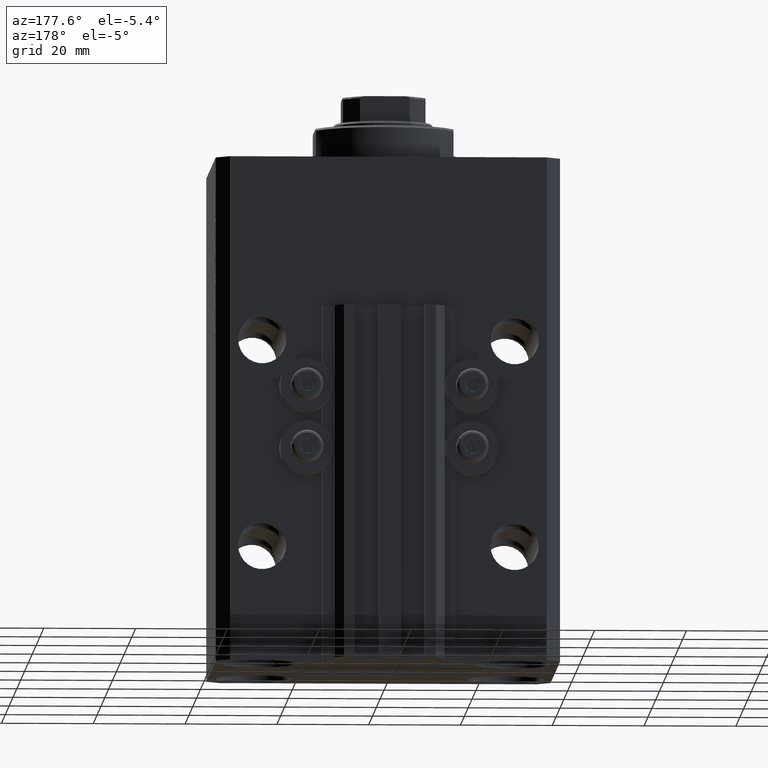
[diagram: clean part render]
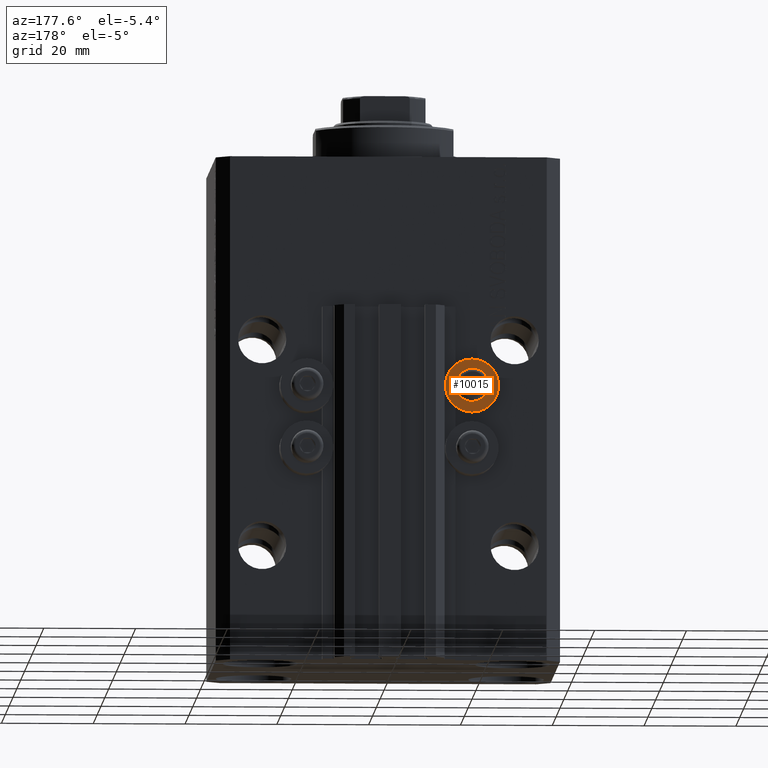
[diagram: same view with one face highlighted and labeled with its STEP entity id]
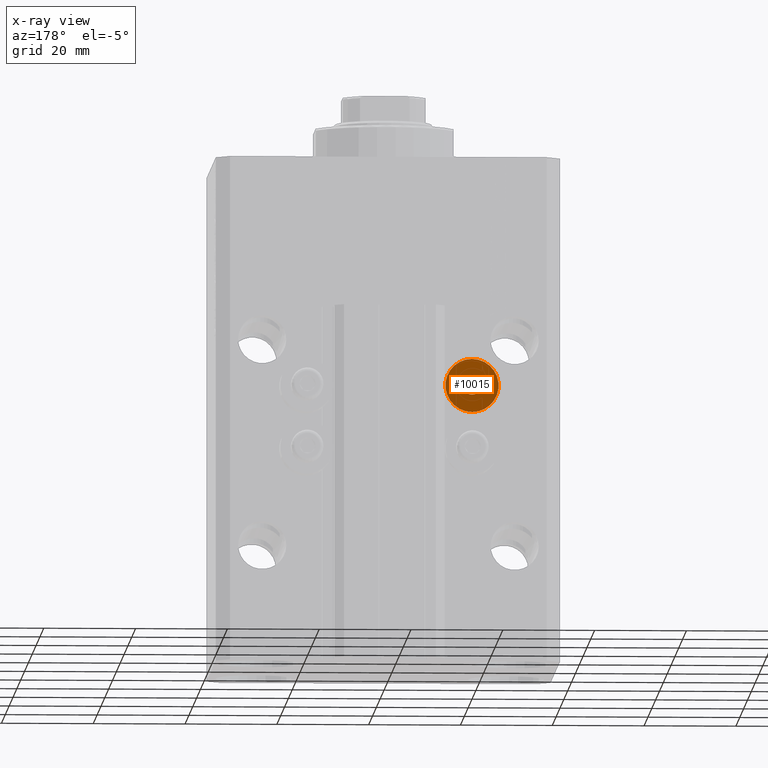
[diagram: x-ray of the same camera — body ghosted, the highlighted face saturated]
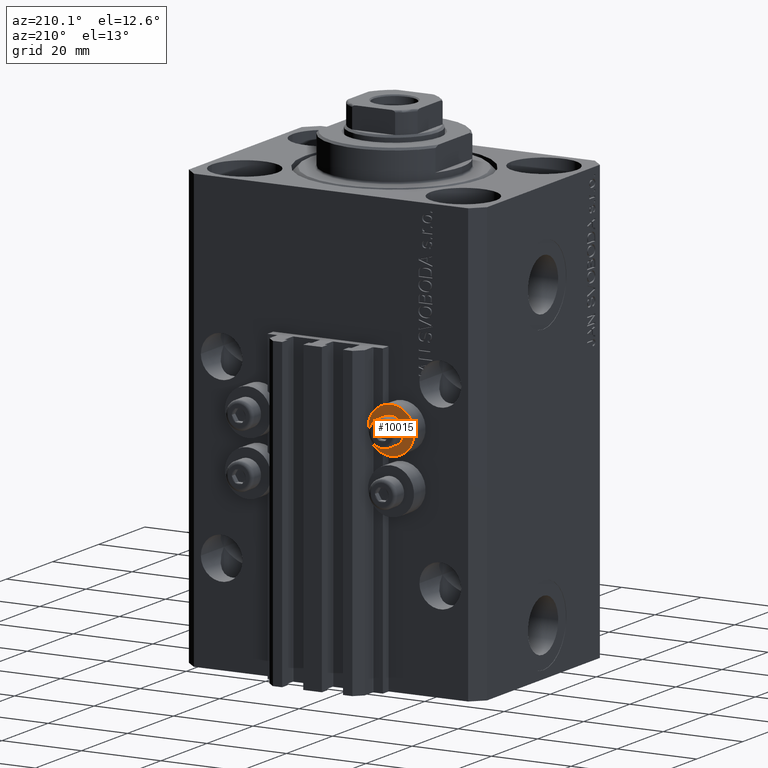
[diagram: same view with one face highlighted and labeled with its STEP entity id]
A machine part, auxiliary view. The second image highlights one B-rep face of the part: STEP entity #10015.
The next image is the same camera in x-ray: the body ghosted, the highlighted face saturated — about 0% of this face is hidden behind the body in this view.
A second angle (auxiliary view) of the same face is appended — the face is thin or edge-on in the first view.
In plain terms, the highlighted planar face has unit normal (0, -1, 0).
Its self-contained STEP definition (entity closure, byte-faithful):
#2131 = EDGE_CURVE ( 'NONE', #45808, #29082, #24730, .T. ) ;
#2223 = CARTESIAN_POINT ( 'NONE',  ( -18.00000000000000355, 32.49999999996100541, -50.39999999999999858 ) ) ;
#2692 = DIRECTION ( 'NONE',  ( 0.000000000000000000, 0.000000000000000000, 1.000000000000000000 ) ) ;
#3157 = ORIENTED_EDGE ( 'NONE', *, *, #20303, .T. ) ;
#4691 = CARTESIAN_POINT ( 'NONE',  ( -18.00000000000000355, 32.49999999996100541, -50.39999999999999858 ) ) ;
#5734 = EDGE_LOOP ( 'NONE', ( #25729, #20622 ) ) ;
#6400 = AXIS2_PLACEMENT_3D ( 'NONE', #35517, #27839, #2692 ) ;
#6897 = EDGE_CURVE ( 'NONE', #29082, #45808, #34826, .T. ) ;
#7647 = CARTESIAN_POINT ( 'NONE',  ( -18.00000000000000355, 32.49999999996100541, -56.20000000000000284 ) ) ;
#8456 = CARTESIAN_POINT ( 'NONE',  ( -18.00000000000000355, 32.49999999996100541, -48.39999999999999858 ) ) ;
#9571 = AXIS2_PLACEMENT_3D ( 'NONE', #4691, #19791, #15712 ) ;
#9861 = CARTESIAN_POINT ( 'NONE',  ( -12.20000000000000284, 32.49999999996100541, -50.39999999999999858 ) ) ;
#10015 = ADVANCED_FACE ( 'NONE', ( #27818, #24475 ), #42435, .F. ) ;
#14415 = DIRECTION ( 'NONE',  ( 0.000000000000000000, 0.000000000000000000, 1.000000000000000000 ) ) ;
#15712 = DIRECTION ( 'NONE',  ( 0.000000000000000000, 0.000000000000000000, 1.000000000000000000 ) ) ;
#17280 = DIRECTION ( 'NONE',  ( 0.000000000000000000, -0.000000000000000000, -1.000000000000000000 ) ) ;
#18594 = AXIS2_PLACEMENT_3D ( 'NONE', #39096, #36446, #14415 ) ;
#18652 = EDGE_LOOP ( 'NONE', ( #19063, #3157 ) ) ;
#19063 = ORIENTED_EDGE ( 'NONE', *, *, #33055, .T. ) ;
#19791 = DIRECTION ( 'NONE',  ( 0.000000000000000000, 1.000000000000000000, 0.000000000000000000 ) ) ;
#20303 = EDGE_CURVE ( 'NONE', #47104, #21034, #33599, .T. ) ;
#20622 = ORIENTED_EDGE ( 'NONE', *, *, #6897, .F. ) ;
#21034 = VERTEX_POINT ( 'NONE', #35054 ) ;
#21372 = AXIS2_PLACEMENT_3D ( 'NONE', #2223, #23780, #38156 ) ;
#23780 = DIRECTION ( 'NONE',  ( -0.000000000000000000, 1.000000000000000000, -0.000000000000000000 ) ) ;
#24475 = FACE_OUTER_BOUND ( 'NONE', #18652, .T. ) ;
#24730 = CIRCLE ( 'NONE', #18594, 2.000000000000001776 ) ;
#25729 = ORIENTED_EDGE ( 'NONE', *, *, #2131, .F. ) ;
#26480 = AXIS2_PLACEMENT_3D ( 'NONE', #9861, #39080, #17280 ) ;
#27818 = FACE_BOUND ( 'NONE', #5734, .T. ) ;
#27839 = DIRECTION ( 'NONE',  ( -0.000000000000000000, 1.000000000000000000, -0.000000000000000000 ) ) ;
#29082 = VERTEX_POINT ( 'NONE', #37995 ) ;
#33055 = EDGE_CURVE ( 'NONE', #21034, #47104, #43115, .T. ) ;
#33599 = CIRCLE ( 'NONE', #21372, 5.799999999999999822 ) ;
#34826 = CIRCLE ( 'NONE', #9571, 2.000000000000001776 ) ;
#35054 = CARTESIAN_POINT ( 'NONE',  ( -18.00000000000000355, 32.49999999996100541, -44.60000000000000142 ) ) ;
#35517 = CARTESIAN_POINT ( 'NONE',  ( -18.00000000000000355, 32.49999999996100541, -50.39999999999999858 ) ) ;
#36446 = DIRECTION ( 'NONE',  ( 0.000000000000000000, 1.000000000000000000, 0.000000000000000000 ) ) ;
#37995 = CARTESIAN_POINT ( 'NONE',  ( -18.00000000000000355, 32.49999999996100541, -52.40000000000000568 ) ) ;
#38156 = DIRECTION ( 'NONE',  ( 0.000000000000000000, 0.000000000000000000, 1.000000000000000000 ) ) ;
#39080 = DIRECTION ( 'NONE',  ( 0.000000000000000000, -1.000000000000000000, 0.000000000000000000 ) ) ;
#39096 = CARTESIAN_POINT ( 'NONE',  ( -18.00000000000000355, 32.49999999996100541, -50.39999999999999858 ) ) ;
#42435 = PLANE ( 'NONE',  #26480 ) ;
#43115 = CIRCLE ( 'NONE', #6400, 5.799999999999999822 ) ;
#45808 = VERTEX_POINT ( 'NONE', #8456 ) ;
#47104 = VERTEX_POINT ( 'NONE', #7647 ) ;